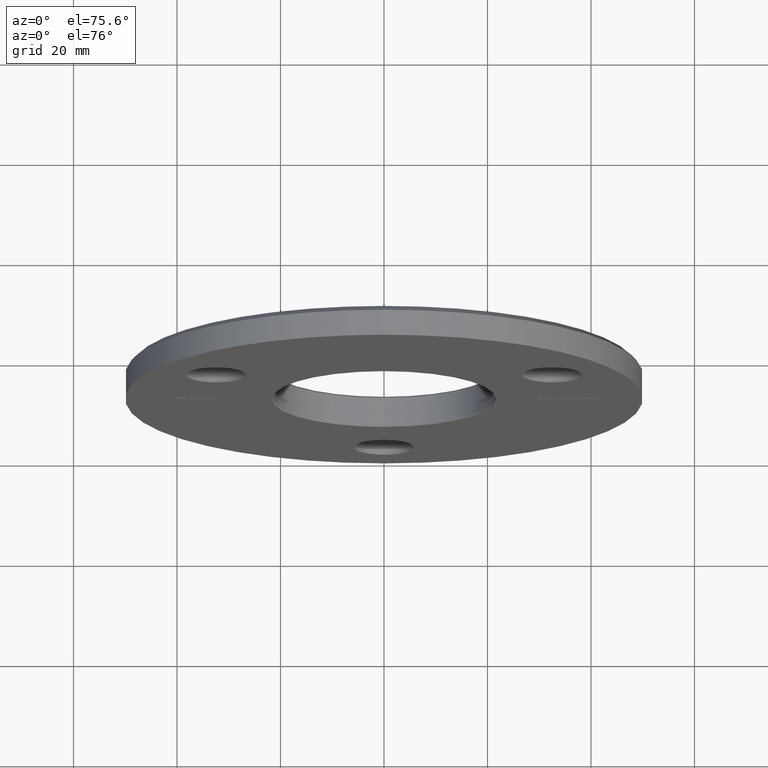
[diagram: clean part render]
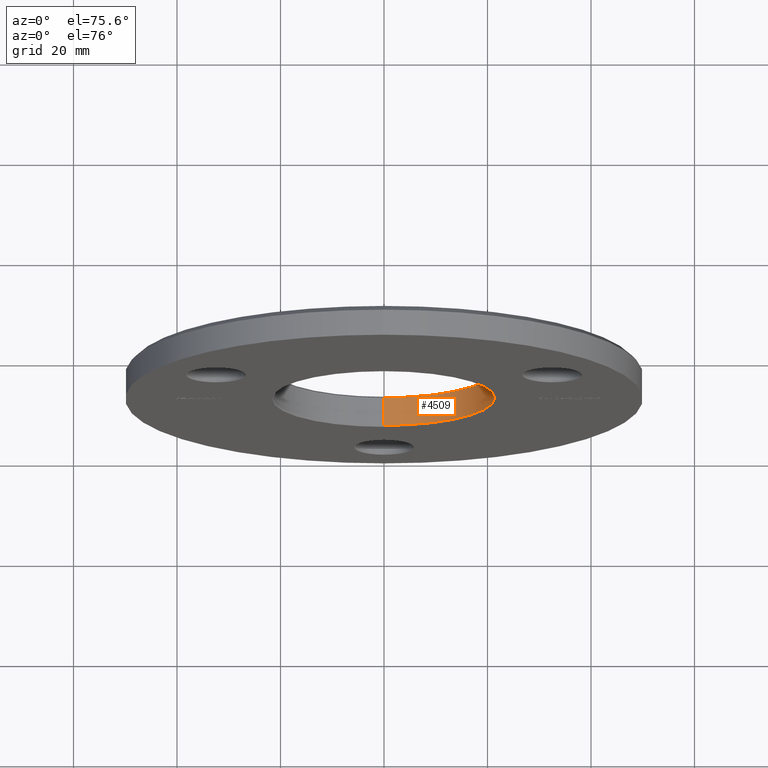
[diagram: same view with one face highlighted and labeled with its STEP entity id]
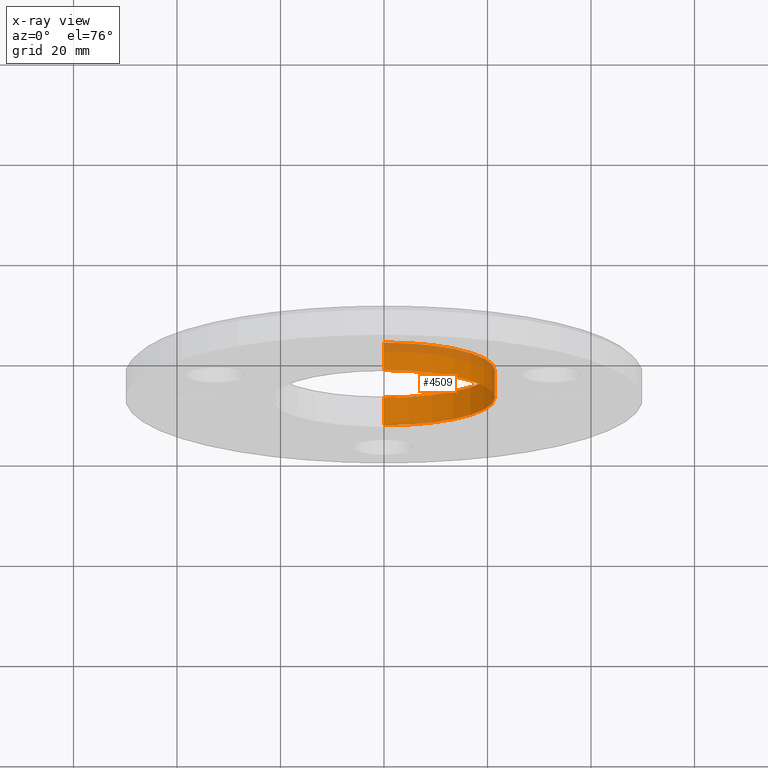
[diagram: x-ray of the same camera — body ghosted, the highlighted face saturated]
A machine part, auxiliary view. The second image highlights one B-rep face of the part: STEP entity #4509.
The next image is the same camera in x-ray: the body ghosted, the highlighted face saturated — about 17% of this face is hidden behind the body in this view.
In plain terms, the highlighted cylindrical surface (partial cylindrical patch) has radius 21.4 mm, axis along (-0, 1, -0).
Its self-contained STEP definition (entity closure, byte-faithful):
#165 = ORIENTED_EDGE ( 'NONE', *, *, #10611, .T. ) ;
#361 = ORIENTED_EDGE ( 'NONE', *, *, #6239, .T. ) ;
#708 = ORIENTED_EDGE ( 'NONE', *, *, #6445, .T. ) ;
#864 = VERTEX_POINT ( 'NONE', #10203 ) ;
#893 = DIRECTION ( 'NONE',  ( 0.000000000000000000, 0.000000000000000000, 1.000000000000000000 ) ) ;
#1673 = FACE_OUTER_BOUND ( 'NONE', #13125, .T. ) ;
#1715 = VECTOR ( 'NONE', #2200, 1000.000000000000000 ) ;
#1889 = LINE ( 'NONE', #4288, #8570 ) ;
#2199 = CIRCLE ( 'NONE', #3232, 21.39999999999999858 ) ;
#2200 = DIRECTION ( 'NONE',  ( -0.000000000000000000, 1.000000000000000000, -0.000000000000000000 ) ) ;
#3139 = CARTESIAN_POINT ( 'NONE',  ( 0.000000000000000000, 0.2499999999999794054, 0.000000000000000000 ) ) ;
#3232 = AXIS2_PLACEMENT_3D ( 'NONE', #3572, #11227, #10193 ) ;
#3572 = CARTESIAN_POINT ( 'NONE',  ( 0.000000000000000000, 5.750000000000007105, 0.000000000000000000 ) ) ;
#3896 = CYLINDRICAL_SURFACE ( 'NONE', #4337, 21.39999999999999858 ) ;
#4288 = CARTESIAN_POINT ( 'NONE',  ( 0.000000000000000000, 0.000000000000000000, 21.39999999999999858 ) ) ;
#4337 = AXIS2_PLACEMENT_3D ( 'NONE', #10693, #10585, #893 ) ;
#4509 = ADVANCED_FACE ( 'NONE', ( #1673 ), #3896, .F. ) ;
#5288 = VERTEX_POINT ( 'NONE', #13788 ) ;
#5477 = LINE ( 'NONE', #7743, #1715 ) ;
#6185 = CIRCLE ( 'NONE', #10847, 21.39999999999999858 ) ;
#6239 = EDGE_CURVE ( 'NONE', #12389, #7023, #2199, .T. ) ;
#6445 = EDGE_CURVE ( 'NONE', #864, #5288, #6185, .T. ) ;
#6918 = CARTESIAN_POINT ( 'NONE',  ( 0.000000000000000000, 5.750000000000007105, 21.39999999999999858 ) ) ;
#7023 = VERTEX_POINT ( 'NONE', #8641 ) ;
#7279 = DIRECTION ( 'NONE',  ( 0.000000000000000000, 0.000000000000000000, 1.000000000000000000 ) ) ;
#7743 = CARTESIAN_POINT ( 'NONE',  ( 2.620744150175335878E-15, 0.000000000000000000, -21.39999999999999858 ) ) ;
#8570 = VECTOR ( 'NONE', #14157, 1000.000000000000000 ) ;
#8641 = CARTESIAN_POINT ( 'NONE',  ( 2.620744150175335878E-15, 5.750000000000007105, -21.39999999999999858 ) ) ;
#10193 = DIRECTION ( 'NONE',  ( 0.000000000000000000, 0.000000000000000000, 1.000000000000000000 ) ) ;
#10203 = CARTESIAN_POINT ( 'NONE',  ( 2.620744150175335878E-15, 0.2499999999999794054, -21.39999999999999858 ) ) ;
#10379 = EDGE_CURVE ( 'NONE', #864, #7023, #5477, .T. ) ;
#10585 = DIRECTION ( 'NONE',  ( -0.000000000000000000, 1.000000000000000000, -0.000000000000000000 ) ) ;
#10611 = EDGE_CURVE ( 'NONE', #5288, #12389, #1889, .T. ) ;
#10693 = CARTESIAN_POINT ( 'NONE',  ( 0.000000000000000000, 0.000000000000000000, 0.000000000000000000 ) ) ;
#10847 = AXIS2_PLACEMENT_3D ( 'NONE', #3139, #13855, #7279 ) ;
#11227 = DIRECTION ( 'NONE',  ( 0.000000000000000000, 1.000000000000000000, 0.000000000000000000 ) ) ;
#12389 = VERTEX_POINT ( 'NONE', #6918 ) ;
#12627 = ORIENTED_EDGE ( 'NONE', *, *, #10379, .F. ) ;
#13125 = EDGE_LOOP ( 'NONE', ( #12627, #708, #165, #361 ) ) ;
#13788 = CARTESIAN_POINT ( 'NONE',  ( 0.000000000000000000, 0.2499999999999794054, 21.39999999999999858 ) ) ;
#13855 = DIRECTION ( 'NONE',  ( -0.000000000000000000, -1.000000000000000000, -0.000000000000000000 ) ) ;
#14157 = DIRECTION ( 'NONE',  ( -0.000000000000000000, 1.000000000000000000, -0.000000000000000000 ) ) ;